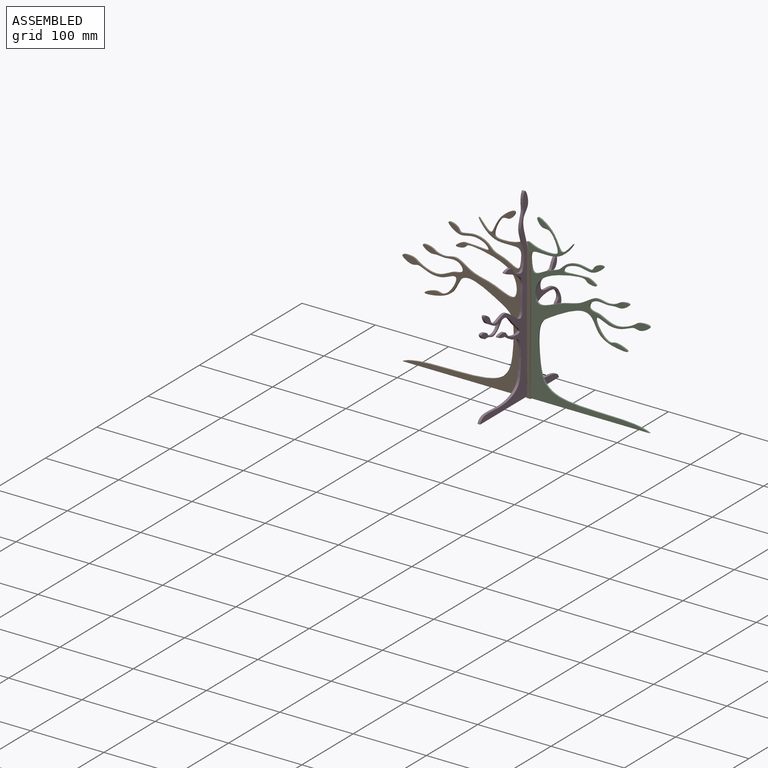
[diagram: assembled view]
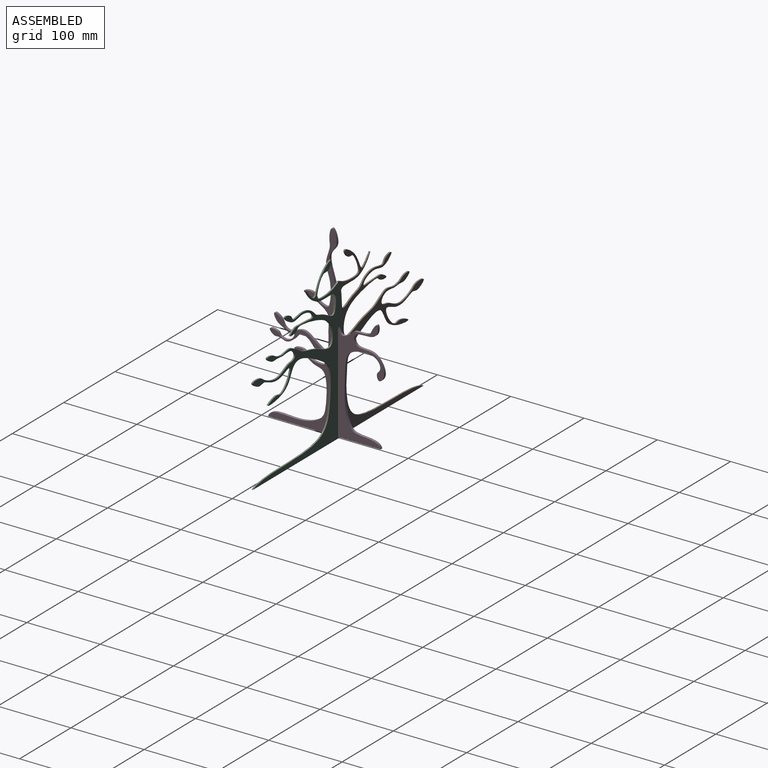
[diagram: assembled view, second angle]
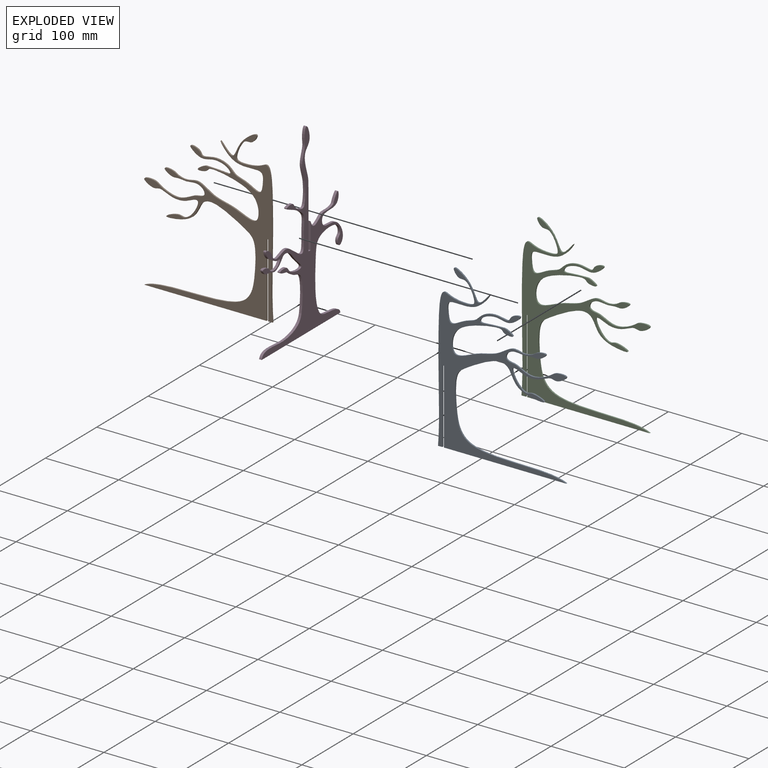
[diagram: exploded view]
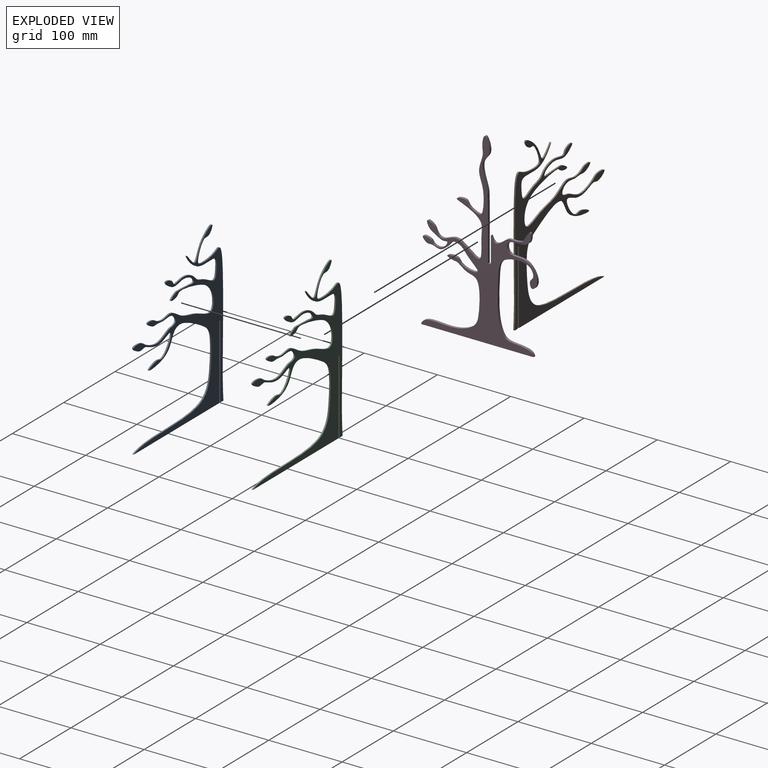
[diagram: exploded view, second angle]
ASSEMBLY  parts=4 mates=2
PART A: 8 faces, bbox 179.4x2x234.2 mm
  f0: plane 167x2mm, normal (0,0,-1), area 334mm2, adj f1,f3,f4,f5
  f1: plane 234.18x179.42mm, normal (0,-1,0), area 6528.8mm2, adj f0,f2,f3,f5,f6,f7
  f2: plane 6x2mm, normal (0,0,-1), area 12mm2, adj f1,f3,f4,f7
  f3: extruded ~223.64x175mm, area 3196.1mm2, adj f0,f1,f2,f4
  f4: plane 234.18x179.42mm, normal (0,1,0), area 6528.8mm2, adj f0,f2,f3,f5,f6,f7
  f5: plane 101x2mm, normal (-1,0,0), area 202mm2, adj f0,f1,f4,f6
  f6: plane 2x2mm, normal (0,0,-1), area 4mm2, adj f1,f4,f5,f7
  f7: plane 101x2mm, normal (1,0,0), area 202mm2, adj f1,f2,f4,f6
PART B: same geometry as A
PART C: same geometry as A
PART D: 9 faces, bbox 162.5x3.5x257.3 mm
  f0: extruded ~30.36x9.84mm, area 131.2mm2, adj f2,f4,f5,f8
  f1: extruded ~249.83x91.38mm, area 2573.9mm2, adj f3,f4,f5,f7
  f2: extruded ~149.61x53.45mm, area 1250.8mm2, adj f0,f3,f4,f5
  f3: plane 153.38x3.5mm, normal (0,0,-1), area 536.8mm2, adj f1,f2,f4,f5
  f4: plane 257.33x162.51mm, normal (0,-1,0), area 6909.2mm2, adj f0,f1,f2,f3,f6,f7,f8
  f5: plane 257.33x162.51mm, normal (0,1,0), area 6909.2mm2, adj f0,f1,f2,f3,f6,f7,f8
  f6: plane 4x3.5mm, normal (0,0,1), area 14mm2, adj f4,f5,f7,f8
  f7: plane 69.22x3.5mm, normal (-1,0,0), area 242.3mm2, adj f1,f4,f5,f6
  f8: plane 35.66x3.5mm, normal (1,0,0), area 124.8mm2, adj f0,f4,f5,f6
PLACE A t=(-107.43,50.65,-39.97)mm
PLACE B rot(axis=(0,0,1),180deg) t=(-107.43,46.65,-39.97)mm
PLACE C t=(-107.43,50.65,-39.97)mm
PLACE D rot(axis=(0,0,-1),90deg) t=(-105.43,48.65,-37.97)mm
MATE planar B.f1 <-> C.f1  axis (0,1,0) through (-107.43,48.65,86.03)mm
MATE planar D.f6 <-> B.f6  axis (0,0,1) through (-107.18,48.65,86.03)mm
